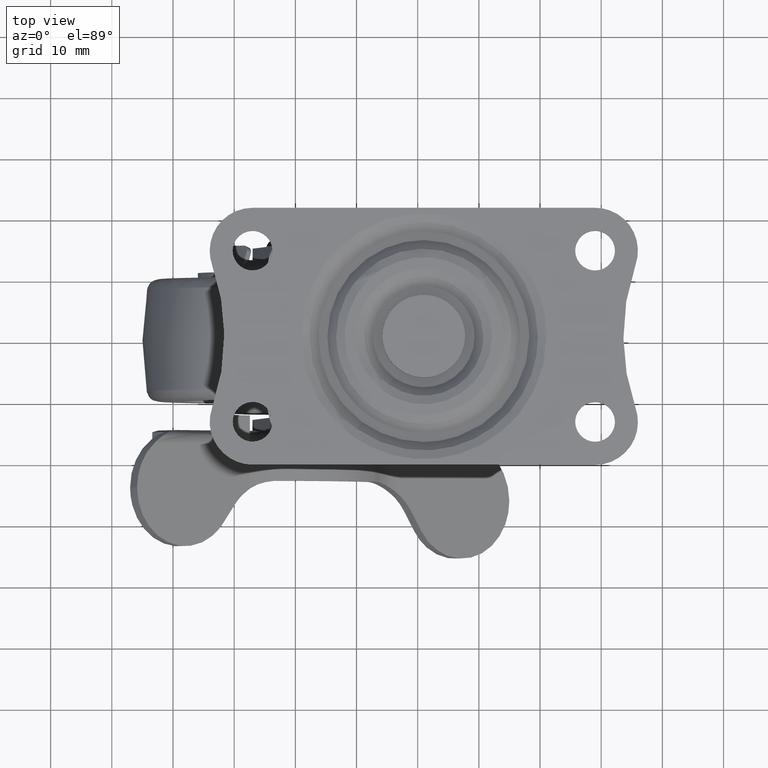
[diagram: clean part render]
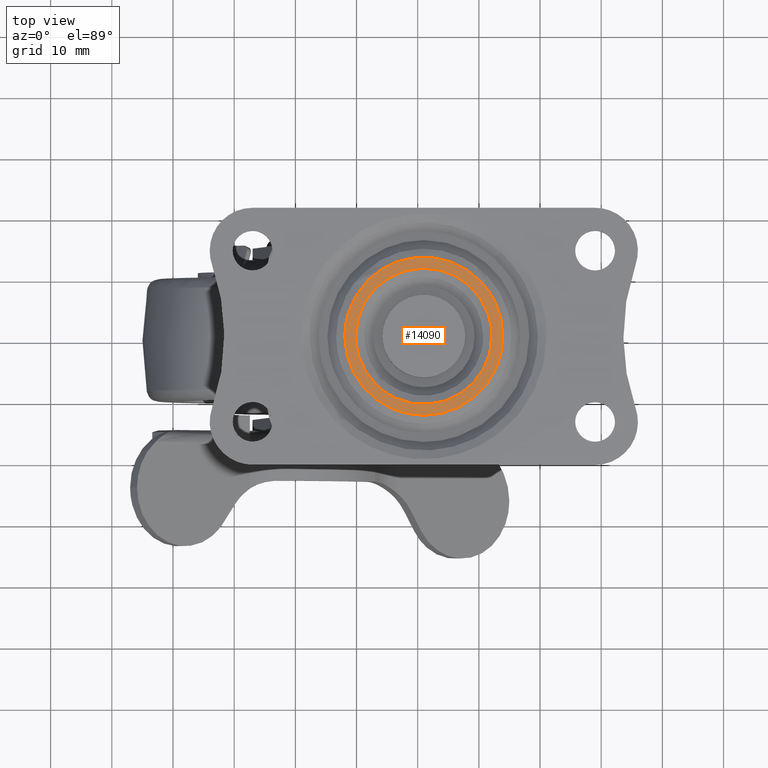
[diagram: same view with one face highlighted and labeled with its STEP entity id]
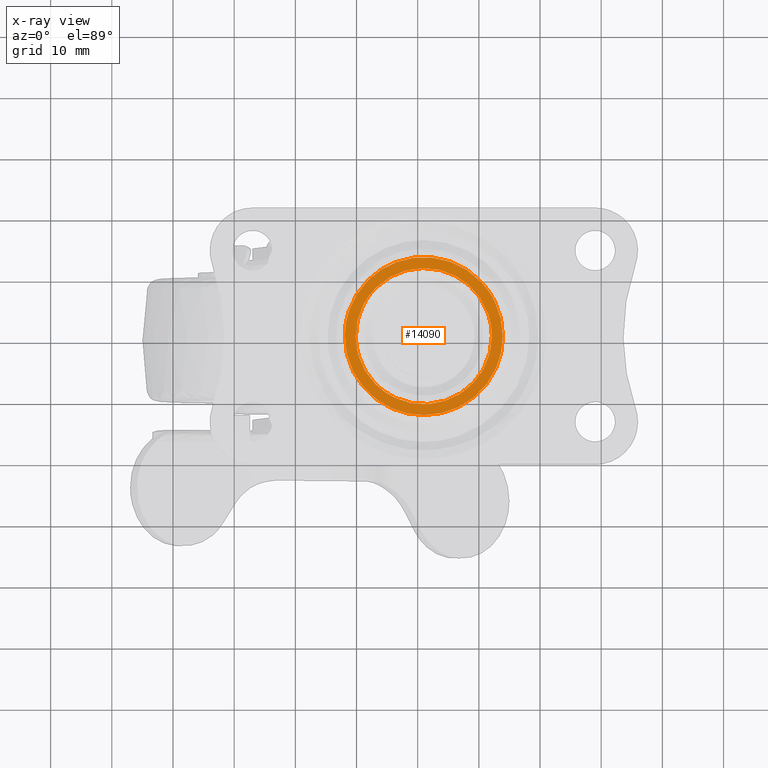
[diagram: x-ray of the same camera — body ghosted, the highlighted face saturated]
A machine part, top view. The second image highlights one B-rep face of the part: STEP entity #14090.
The next image is the same camera in x-ray: the body ghosted, the highlighted face saturated — about 0% of this face is hidden behind the body in this view.
In plain terms, the highlighted face is a freeform B-spline surface patch.
Its self-contained STEP definition (entity closure, byte-faithful):
#10782=CARTESIAN_POINT('',(30.307525562815190,8.963091746105164,40.0));
#10783=VERTEX_POINT('',#10782);
#10793=CARTESIAN_POINT('',(33.921572875253602,1.421085E-014,40.0));
#10794=VERTEX_POINT('',#10793);
#10795=CARTESIAN_POINT('',(33.921572875253602,1.421085E-014,40.0));
#10796=CARTESIAN_POINT('',(33.921606045089007,0.670650580782550,40.0));
#10797=CARTESIAN_POINT('',(33.804880377984432,2.166727177015217,40.000000000000043));
#10798=CARTESIAN_POINT('',(33.224563009735128,4.425522129712102,39.999999999999901));
#10799=CARTESIAN_POINT('',(32.091109549310588,6.813319007525494,40.000000000000412));
#10800=CARTESIAN_POINT('',(30.987583383765841,8.257171022120785,39.999999999999623));
#10801=CARTESIAN_POINT('',(30.307525562815190,8.963091746105164,40.0));
#10802=B_SPLINE_CURVE_WITH_KNOTS('',3,(#10795,#10796,#10797,#10798,#10799,#10800,#10801),.UNSPECIFIED.,.F.,.U.,(4,1,1,1,4),(0.000000016828634,2.011964293856300,4.488253626044748,6.964500734529637,9.905072898175348),.UNSPECIFIED.);
#10803=EDGE_CURVE('',#10794,#10783,#10802,.T.);
#10805=CARTESIAN_POINT('',(21.000001037976691,-12.921572875253540,40.0));
#10806=VERTEX_POINT('',#10805);
#10807=CARTESIAN_POINT('',(21.000001037976691,-12.921572875253540,40.0));
#10808=CARTESIAN_POINT('',(22.057171044460659,-12.921860655648929,40.000000000000007));
#10809=CARTESIAN_POINT('',(23.748453806314370,-12.712779842058540,39.999999999999957));
#10810=CARTESIAN_POINT('',(25.811794703525450,-12.031062898942050,40.000000000000028));
#10811=CARTESIAN_POINT('',(27.434141774207550,-11.251546453956919,40.000000000000043));
#10812=CARTESIAN_POINT('',(28.939303995708620,-10.259170427471910,39.999999999999893));
#10813=CARTESIAN_POINT('',(30.235185807787701,-9.084567888497585,40.000000000000021));
#10814=CARTESIAN_POINT('',(31.514226093077241,-7.601969012101150,40.000000000000689));
#10815=CARTESIAN_POINT('',(32.640521066713511,-5.799043627726114,39.999999999998430));
#10816=CARTESIAN_POINT('',(33.655654849195422,-3.118369015995786,40.000000000001357));
#10817=CARTESIAN_POINT('',(33.921989784892830,-1.162902460663011,39.999999999999410));
#10818=CARTESIAN_POINT('',(33.921572875253602,1.421085E-014,40.0));
#10819=B_SPLINE_CURVE_WITH_KNOTS('',3,(#10807,#10808,#10809,#10810,#10811,#10812,#10813,#10814,#10815,#10816,#10817,#10818),.UNSPECIFIED.,.F.,.U.,(4,1,1,1,1,1,1,1,1,4),(0.000000034604831,3.171434154665160,5.074321595987481,6.501486855044972,8.562954520235962,10.465773223099889,11.734330960769730,14.430093641422591,16.808703967582751,20.297285979895651),.UNSPECIFIED.);
#10820=EDGE_CURVE('',#10806,#10794,#10819,.T.);
#10822=CARTESIAN_POINT('',(8.078427124746401,1.421085E-014,40.0));
#10823=VERTEX_POINT('',#10822);
#10824=CARTESIAN_POINT('',(8.078427124746401,1.421085E-014,40.0));
#10825=CARTESIAN_POINT('',(8.078135530134205,-1.057174916223367,39.999999999999957));
#10826=CARTESIAN_POINT('',(8.261104344966732,-2.537026622866919,40.000000000000050));
#10827=CARTESIAN_POINT('',(8.891001424567298,-4.613366610062410,39.999999999999972));
#10828=CARTESIAN_POINT('',(9.544546079280325,-6.063685156334265,40.000000000000149));
#10829=CARTESIAN_POINT('',(10.498156167241151,-7.590208929617008,39.999999999999673));
#10830=CARTESIAN_POINT('',(11.473215642094621,-8.778324335680873,40.000000000000497));
#10831=CARTESIAN_POINT('',(12.699707496178901,-9.946036360633611,39.999999999999588));
#10832=CARTESIAN_POINT('',(13.891666265703019,-10.830054251605260,40.000000000000377));
#10833=CARTESIAN_POINT('',(15.365149462537980,-11.664776745673960,39.999999999999808));
#10834=CARTESIAN_POINT('',(17.029994922239538,-12.354429641593621,39.999999999999922));
#10835=CARTESIAN_POINT('',(18.991441527374899,-12.820222035056970,40.000000000000490));
#10836=CARTESIAN_POINT('',(20.365726694953938,-12.921597336805840,39.999999999999382));
#10837=CARTESIAN_POINT('',(21.000001037976691,-12.921572875253540,40.0));
#10838=B_SPLINE_CURVE_WITH_KNOTS('',3,(#10824,#10825,#10826,#10827,#10828,#10829,#10830,#10831,#10832,#10833,#10834,#10835,#10836,#10837),.UNSPECIFIED.,.F.,.U.,(4,1,1,1,1,1,1,1,1,1,1,4),(0.000000034254182,3.171434337139026,4.440028130468763,6.501487229460674,7.928654870310435,9.831512027504909,11.100044447182899,13.002948132418330,14.271519627226890,16.174411110977061,18.394449296669251,20.297287149944530),.UNSPECIFIED.);
#10839=EDGE_CURVE('',#10823,#10806,#10838,.T.);
#10841=CARTESIAN_POINT('',(12.036908253894850,9.307525562815201,40.0));
#10842=VERTEX_POINT('',#10841);
#10843=CARTESIAN_POINT('',(12.036908253894850,9.307525562815201,40.0));
#10844=CARTESIAN_POINT('',(11.413029450278380,8.706888003110850,39.999999999999957));
#10845=CARTESIAN_POINT('',(10.462790627188561,7.586901200064377,40.000000000000192));
#10846=CARTESIAN_POINT('',(9.275171816825075,5.578820276125051,39.999999999999787));
#10847=CARTESIAN_POINT('',(8.344425728496665,3.139155879815503,40.000000000000142));
#10848=CARTESIAN_POINT('',(8.078066896104858,1.136672166134439,39.999999999999787));
#10849=CARTESIAN_POINT('',(8.078427124746401,1.421085E-014,40.0));
#10850=B_SPLINE_CURVE_WITH_KNOTS('',3,(#10843,#10844,#10845,#10846,#10847,#10848,#10849),.UNSPECIFIED.,.F.,.U.,(4,1,1,1,4),(9.564916E-009,2.598053479732842,4.384224373196691,6.982260919132842,10.392213890237221),.UNSPECIFIED.);
#10851=EDGE_CURVE('',#10842,#10823,#10850,.T.);
#10883=CARTESIAN_POINT('',(30.307525562815190,8.963091746105164,40.0));
#10884=CARTESIAN_POINT('',(29.720955864743999,9.572334167344408,40.0));
#10885=CARTESIAN_POINT('',(28.427620197129720,10.675005443573280,40.000000000000007));
#10886=CARTESIAN_POINT('',(26.063291989218438,11.996883688774140,39.999999999999957));
#10887=CARTESIAN_POINT('',(23.466415388304721,12.785825257641690,40.000000000000142));
#10888=CARTESIAN_POINT('',(20.607524522333328,13.015645146800210,39.999999999999822));
#10889=CARTESIAN_POINT('',(17.970738571928059,12.658707455409919,40.000000000000092));
#10890=CARTESIAN_POINT('',(15.821351435949991,11.890548422650401,39.999999999999957));
#10891=CARTESIAN_POINT('',(13.860023824542170,10.843280914133720,40.000000000000220));
#10892=CARTESIAN_POINT('',(12.722126043460250,9.967628200043288,39.999999999999702));
#10893=CARTESIAN_POINT('',(12.036908253894850,9.307525562815201,40.0));
#10894=B_SPLINE_CURVE_WITH_KNOTS('',3,(#10883,#10884,#10885,#10886,#10887,#10888,#10889,#10890,#10891,#10892,#10893),.UNSPECIFIED.,.F.,.U.,(4,1,1,1,1,1,1,1,4),(0.000000034437992,2.537158115425147,5.074321746737693,8.087230870005236,10.624339783595710,13.637225420964869,16.015835817716329,17.442982119080050,20.297286583423212),.UNSPECIFIED.);
#10895=EDGE_CURVE('',#10783,#10842,#10894,.T.);
#11080=CARTESIAN_POINT('',(12.984093513090111,-7.719270259909170,40.0));
#11081=VERTEX_POINT('',#11080);
#11091=CARTESIAN_POINT('',(32.128427124746381,1.421085E-014,40.0));
#11092=VERTEX_POINT('',#11091);
#11093=CARTESIAN_POINT('',(32.128427124746381,1.421085E-014,40.0));
#11094=CARTESIAN_POINT('',(32.128456201788659,-0.585035710628669,39.999999999999972));
#11095=CARTESIAN_POINT('',(32.027811585859197,-1.858363449186031,39.999999999999957));
#11096=CARTESIAN_POINT('',(31.488226787024558,-3.967945711729285,40.000000000000007));
#11097=CARTESIAN_POINT('',(30.495618661328610,-5.952116583298905,40.000000000000142));
#11098=CARTESIAN_POINT('',(29.276107974520070,-7.497415158104212,39.999999999999908));
#11099=CARTESIAN_POINT('',(28.050438386971720,-8.660087335836691,40.000000000000092));
#11100=CARTESIAN_POINT('',(26.640334505749479,-9.656680205475954,39.999999999999922));
#11101=CARTESIAN_POINT('',(25.017679793614430,-10.427663700612330,39.999999999999417));
#11102=CARTESIAN_POINT('',(23.495178598945621,-10.875101511734970,40.000000000000213));
#11103=CARTESIAN_POINT('',(21.998101531877420,-11.117644728159830,39.999999999999922));
#11104=CARTESIAN_POINT('',(20.203549324641781,-11.164617248536070,40.000000000000171));
#11105=CARTESIAN_POINT('',(18.153207616741032,-10.834877648271510,39.999999999999552));
#11106=CARTESIAN_POINT('',(16.341033600767339,-10.154874492583451,40.000000000000398));
#11107=CARTESIAN_POINT('',(14.597771114523409,-9.175155172628914,40.000000000000902));
#11108=CARTESIAN_POINT('',(13.580757800525170,-8.339140116478452,39.999999999998742));
#11109=CARTESIAN_POINT('',(12.984093513090111,-7.719270259909170,40.0));
#11110=B_SPLINE_CURVE_WITH_KNOTS('',3,(#11093,#11094,#11095,#11096,#11097,#11098,#11099,#11100,#11101,#11102,#11103,#11104,#11105,#11106,#11107,#11108,#11109),.UNSPECIFIED.,.F.,.U.,(4,1,1,1,1,1,1,1,1,1,1,1,1,1,4),(0.000000213650818,1.755114638666747,3.820016231887156,6.504406305282938,8.362817533443693,9.705021197635890,11.563423247503440,13.525007628072281,15.073647116494699,16.312593990888491,18.067771012879639,20.442425655776390,22.507327908237180,23.849534368918761,26.430599368904279),.UNSPECIFIED.);
#11111=EDGE_CURVE('',#11092,#11081,#11110,.T.);
#11113=CARTESIAN_POINT('',(13.280729736690040,8.015906490478283,40.0));
#11114=VERTEX_POINT('',#11113);
#11115=CARTESIAN_POINT('',(13.280729736690040,8.015906490478283,40.0));
#11116=CARTESIAN_POINT('',(13.841748450876141,8.556338406561755,39.999999999999957));
#11117=CARTESIAN_POINT('',(14.943581977317651,9.413947547847199,40.000000000000163));
#11118=CARTESIAN_POINT('',(16.878313872156451,10.407487651046660,39.999999999999879));
#11119=CARTESIAN_POINT('',(18.739950940028059,10.957378457811480,39.999999999999950));
#11120=CARTESIAN_POINT('',(20.731650930054169,11.175627229916859,40.000000000000107));
#11121=CARTESIAN_POINT('',(22.463502952627881,11.079965378481980,40.0));
#11122=CARTESIAN_POINT('',(24.354010073629819,10.667242627208029,39.999999999999929));
#11123=CARTESIAN_POINT('',(26.058341206040559,9.978885688827472,40.000000000000171));
#11124=CARTESIAN_POINT('',(27.754411859419729,8.910972658500890,39.999999999999979));
#11125=CARTESIAN_POINT('',(29.350015299019930,7.480924557757342,40.000000000000007));
#11126=CARTESIAN_POINT('',(30.575783289919450,5.799778501790817,40.000000000000028));
#11127=CARTESIAN_POINT('',(31.346523648797660,4.173921168205332,39.999999999999957));
#11128=CARTESIAN_POINT('',(31.943359693360840,2.370632772643154,40.000000000000227));
#11129=CARTESIAN_POINT('',(32.128769848645923,0.982214886546276,39.999999999999687));
#11130=CARTESIAN_POINT('',(32.128427124746381,1.421085E-014,40.0));
#11131=B_SPLINE_CURVE_WITH_KNOTS('',3,(#11115,#11116,#11117,#11118,#11119,#11120,#11121,#11122,#11123,#11124,#11125,#11126,#11127,#11128,#11129,#11130),.UNSPECIFIED.,.F.,.U.,(4,1,1,1,1,1,1,1,1,1,1,1,1,4),(0.000000220187452,2.336920245099911,4.165805826951239,6.502767808155628,8.128475878564061,10.160595289038829,11.684666030545809,13.919944055774501,15.647232151727390,17.679370556201849,20.321147481036551,21.845253457423269,23.064542218043361,26.011063109968521),.UNSPECIFIED.);
#11132=EDGE_CURVE('',#11114,#11092,#11131,.T.);
#11168=CARTESIAN_POINT('',(9.871572875253621,1.421085E-014,40.0));
#11169=VERTEX_POINT('',#11168);
#11170=CARTESIAN_POINT('',(9.871572875253621,1.421085E-014,40.0));
#11171=CARTESIAN_POINT('',(9.871491440685990,0.699225169843218,40.000000000000007));
#11172=CARTESIAN_POINT('',(9.981793681870402,1.864561973793435,40.000000000000050));
#11173=CARTESIAN_POINT('',(10.411558557875740,3.538419249158531,39.999999999999957));
#11174=CARTESIAN_POINT('',(10.944181807643609,4.835751440209917,40.000000000000142));
#11175=CARTESIAN_POINT('',(11.841031665164490,6.419762480531553,39.999999999999673));
#11176=CARTESIAN_POINT('',(12.642604723337300,7.401683032837768,40.000000000000327));
#11177=CARTESIAN_POINT('',(13.280729736690040,8.015906490478283,40.0));
#11178=B_SPLINE_CURVE_WITH_KNOTS('',3,(#11170,#11171,#11172,#11173,#11174,#11175,#11176,#11177),.UNSPECIFIED.,.F.,.U.,(4,1,1,1,1,4),(0.000000018343506,2.097671560186374,3.496136014907651,5.174241436662723,6.293015071004378,8.950071019780975),.UNSPECIFIED.);
#11179=EDGE_CURVE('',#11169,#11114,#11178,.T.);
#11181=CARTESIAN_POINT('',(12.984093513090111,-7.719270259909170,40.0));
#11182=CARTESIAN_POINT('',(12.213146114368220,-6.919534051151841,40.000000000000163));
#11183=CARTESIAN_POINT('',(11.304290301270839,-5.636388821563717,39.999999999999893));
#11184=CARTESIAN_POINT('',(10.475860646867369,-3.715444676228001,40.000000000000078));
#11185=CARTESIAN_POINT('',(10.003259696820329,-2.043734495363657,40.000000000000163));
#11186=CARTESIAN_POINT('',(9.871474916760509,-0.755310833001520,39.999999999999751));
#11187=CARTESIAN_POINT('',(9.871572875253621,1.421085E-014,40.0));
#11188=B_SPLINE_CURVE_WITH_KNOTS('',3,(#11181,#11182,#11183,#11184,#11185,#11186,#11187),.UNSPECIFIED.,.F.,.U.,(4,1,1,1,4),(0.000000023588585,3.332243350049157,4.665112653271406,6.264607214341943,8.530531301412422),.UNSPECIFIED.);
#11189=EDGE_CURVE('',#11081,#11169,#11188,.T.);
#14072=CARTESIAN_POINT('',(6.787562044597600,-14.212325881683469,40.0));
#14073=CARTESIAN_POINT('',(35.212438648569588,-14.212325881683469,40.0));
#14074=CARTESIAN_POINT('',(6.787562044597600,14.210082856604410,40.0));
#14075=CARTESIAN_POINT('',(35.212438648569588,14.210082856604410,40.0));
#14076=B_SPLINE_SURFACE_WITH_KNOTS('',1,1,((#14072,#14074),(#14073,#14075)),.UNSPECIFIED.,.F.,.F.,.U.,(2,2),(2,2),(0.0,28.424876603971988),(0.0,28.422408738287871),.UNSPECIFIED.);
#14077=ORIENTED_EDGE('',*,*,#10851,.T.);
#14078=ORIENTED_EDGE('',*,*,#10839,.T.);
#14079=ORIENTED_EDGE('',*,*,#10820,.T.);
#14080=ORIENTED_EDGE('',*,*,#10803,.T.);
#14081=ORIENTED_EDGE('',*,*,#10895,.T.);
#14082=EDGE_LOOP('',(#14077,#14078,#14079,#14080,#14081));
#14083=FACE_OUTER_BOUND('',#14082,.T.);
#14084=ORIENTED_EDGE('',*,*,#11179,.T.);
#14085=ORIENTED_EDGE('',*,*,#11132,.T.);
#14086=ORIENTED_EDGE('',*,*,#11111,.T.);
#14087=ORIENTED_EDGE('',*,*,#11189,.T.);
#14088=EDGE_LOOP('',(#14084,#14085,#14086,#14087));
#14089=FACE_BOUND('',#14088,.T.);
#14090=ADVANCED_FACE('',(#14083,#14089),#14076,.T.);